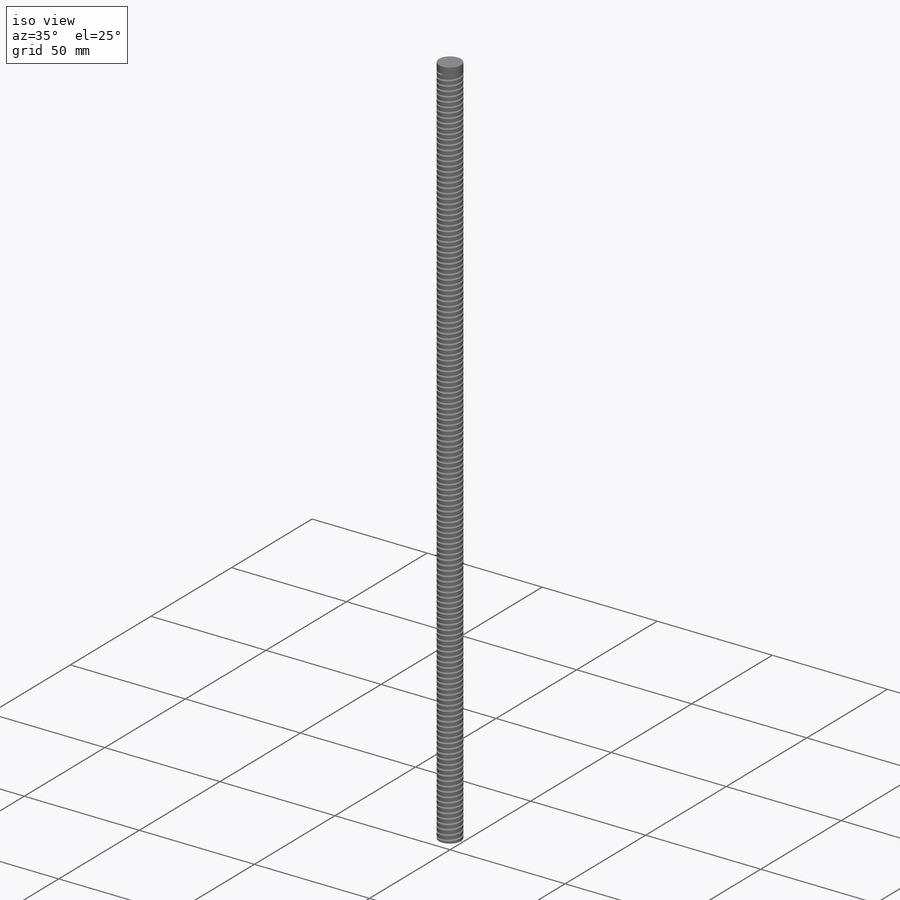
[diagram: iso view]
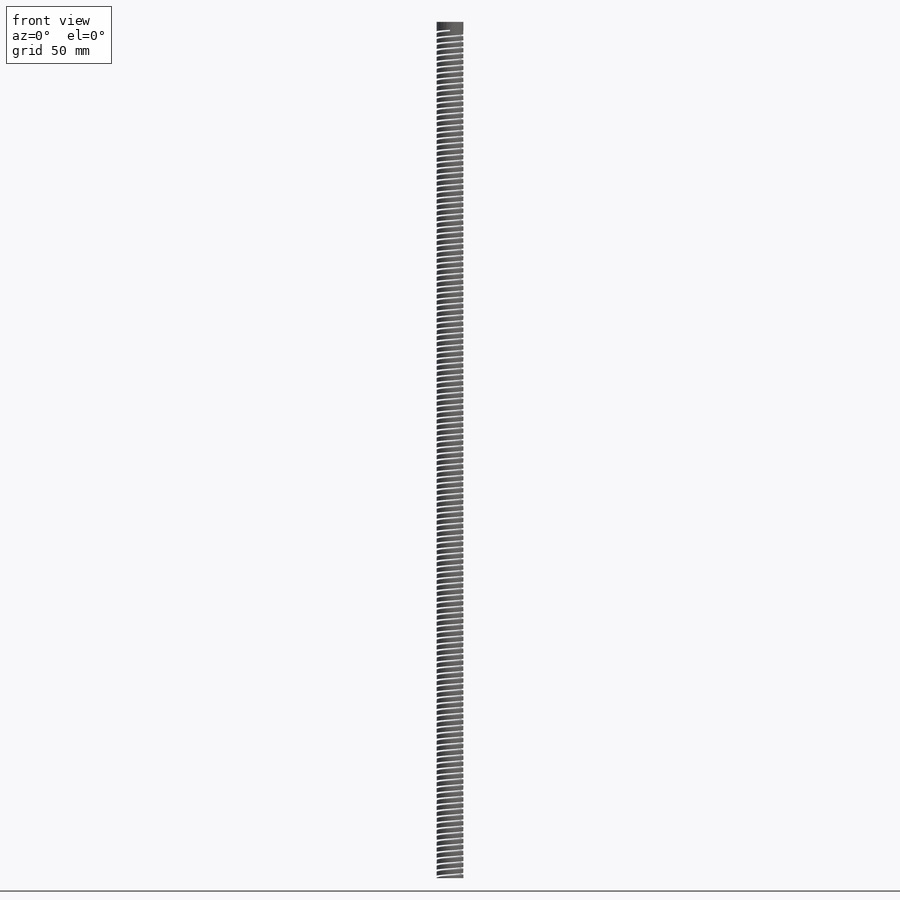
[diagram: front view]
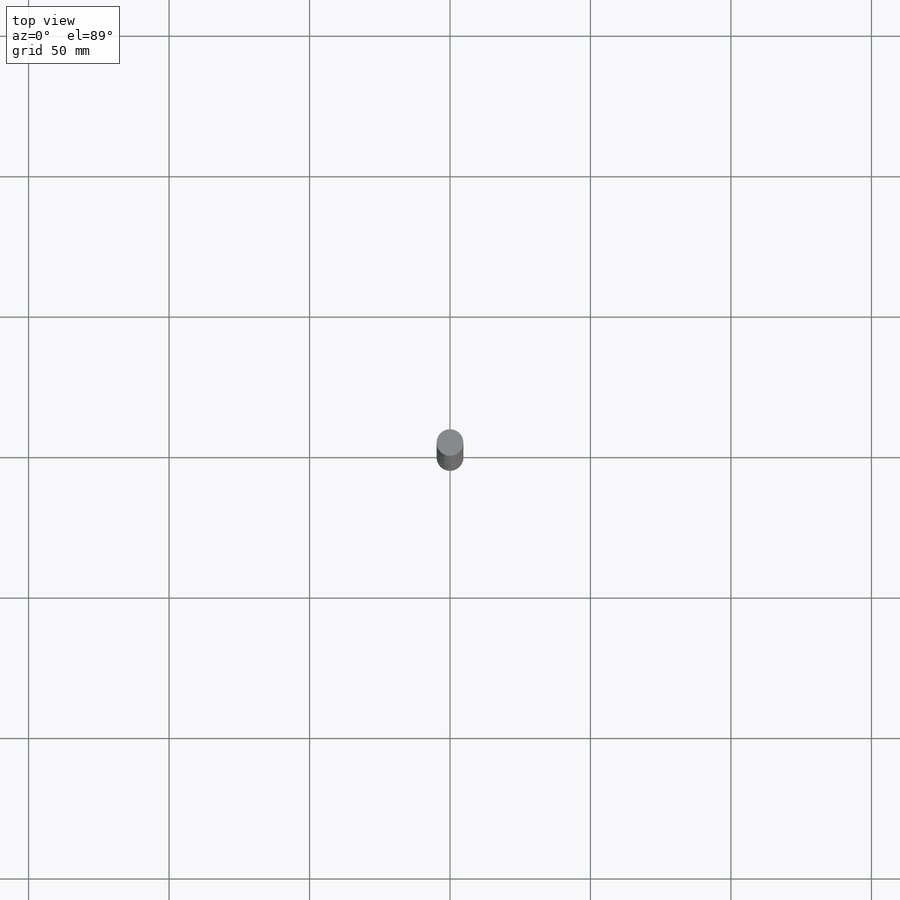
[diagram: top view]
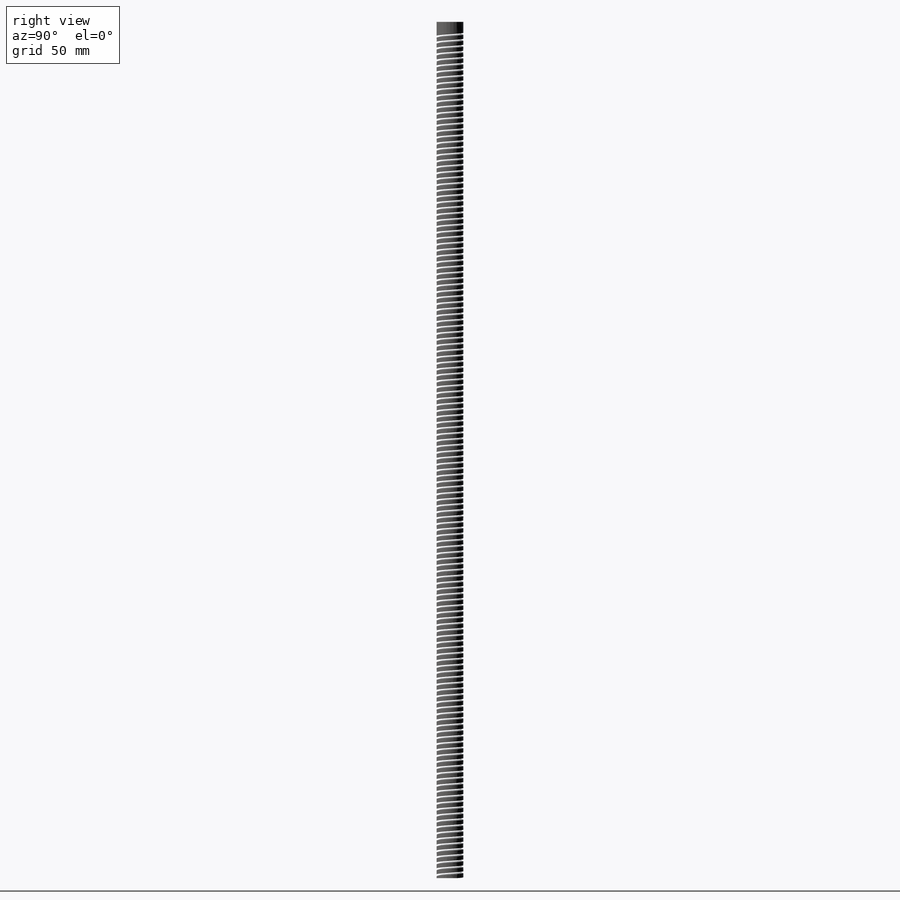
[diagram: right view]
SOLIDWORKS PART (.sldprt)
format: sldprt  version: not decoded by parser v0  size: 1,918,464 bytes
history: native  units: mm
features: sketch x3, material x1, extrude x1, helix x1, sweep x1 (+13 scaffold rows collapsed)
feature tree (20):
  scaffold x13  (default folders/planes/origin — collapsed)
  material  "Material <not specified>"
  sketch  "Sketch1"  dims[D1=~9.333644mm]
  extrude  "Boss-Extrude1"  Depth=304.8mm
  sketch  "Sketch3"  dims[D1=~0.674092mm]
  sketch  "Sketch7"  dims[D1=~9.333644mm]
  helix  "Helix/Spiral2"  Pitch=305.3mm
  sweep  "Cut-Sweep1"
decode coverage: 5 of 6 modeling features carry decoded parameters
note: ~ marks probable driven/reference dimensions
note: suppression state not decoded; provenance and decode notes live in map.json
